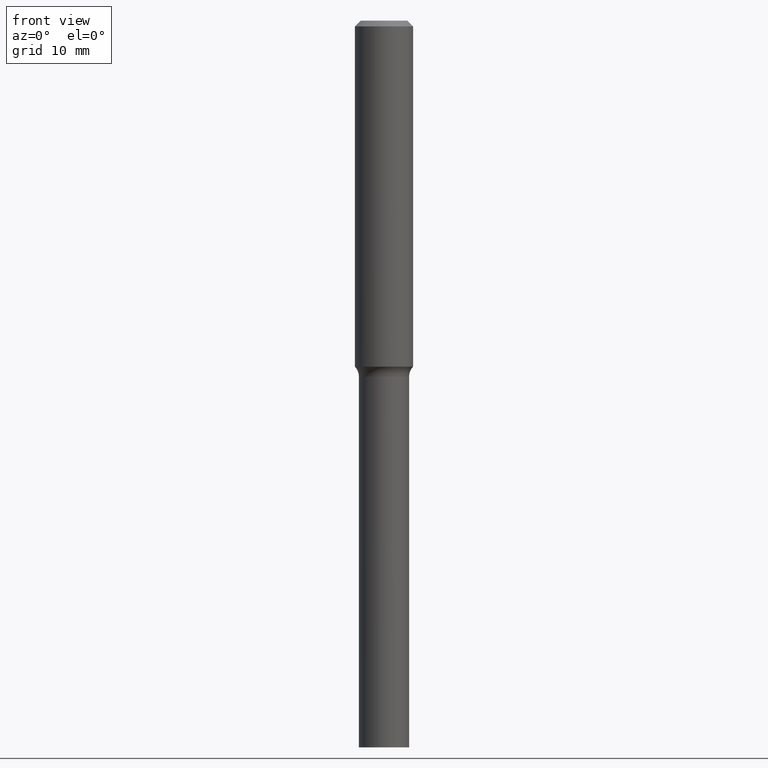
[diagram: clean part render]
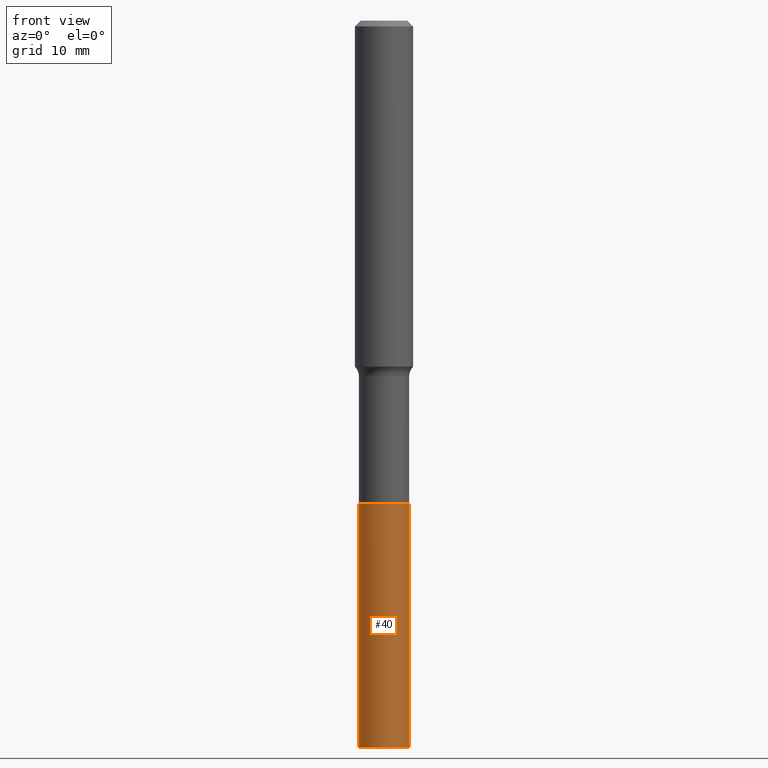
[diagram: same view with one face highlighted and labeled with its STEP entity id]
A machine part, front view. The second image highlights one B-rep face of the part: STEP entity #40.
In plain terms, the highlighted cylindrical surface (edge-blend (fillet) strip) has radius 3.4506 mm, axis along (-0, 0, 1).
Its self-contained STEP definition (entity closure, byte-faithful):
#8 = CYLINDRICAL_SURFACE ( 'NONE', #76, 0.1358500000000001096 ) ;
#9 = CARTESIAN_POINT ( 'NONE',  ( 0.1358499999999999985, -1.008933362485503452E-14, -2.618000000000000327 ) ) ;
#12 = CARTESIAN_POINT ( 'NONE',  ( 6.402237334592687709E-29, -9.140698145091355562E-15, -2.618000000000000327 ) ) ;
#32 = CARTESIAN_POINT ( 'NONE',  ( 6.402237334592687709E-29, -9.140698145091355562E-15, -2.618000000000000327 ) ) ;
#40 = ADVANCED_FACE ( 'NONE', ( #96 ), #8, .T. ) ;
#41 = CARTESIAN_POINT ( 'NONE',  ( -0.1358499999999999985, -1.047805778152831320E-14, -2.618000000000000327 ) ) ;
#63 = DIRECTION ( 'NONE',  ( -2.445468806185136597E-29, 3.491481338843145583E-15, 1.000000000000000000 ) ) ;
#66 = EDGE_CURVE ( 'NONE', #164, #117, #451, .T. ) ;
#71 = CARTESIAN_POINT ( 'NONE',  ( -0.1358500000000001096, -8.175425838561259273E-15, -2.618000000000000327 ) ) ;
#76 = AXIS2_PLACEMENT_3D ( 'NONE', #12, #240, #472 ) ;
#87 = VERTEX_POINT ( 'NONE', #9 ) ;
#88 = DIRECTION ( 'NONE',  ( -2.445468806185136597E-29, 3.491481338843145583E-15, 1.000000000000000000 ) ) ;
#96 = FACE_OUTER_BOUND ( 'NONE', #281, .T. ) ;
#104 = LINE ( 'NONE', #71, #121 ) ;
#117 = VERTEX_POINT ( 'NONE', #362 ) ;
#121 = VECTOR ( 'NONE', #337, 39.37007874015748143 ) ;
#159 = AXIS2_PLACEMENT_3D ( 'NONE', #246, #88, #205 ) ;
#164 = VERTEX_POINT ( 'NONE', #411 ) ;
#187 = CARTESIAN_POINT ( 'NONE',  ( 0.1358500000000001096, -1.008933362485503610E-14, -2.618000000000000327 ) ) ;
#205 = DIRECTION ( 'NONE',  ( 1.000000000000000000, -6.982962677686262766E-15, 0.000000000000000000 ) ) ;
#212 = EDGE_CURVE ( 'NONE', #117, #87, #379, .T. ) ;
#215 = DIRECTION ( 'NONE',  ( 1.000000000000000000, -6.982962677686261189E-15, 0.000000000000000000 ) ) ;
#217 = EDGE_CURVE ( 'NONE', #485, #87, #262, .T. ) ;
#240 = DIRECTION ( 'NONE',  ( -2.445468806185136597E-29, 3.491481338843145583E-15, 1.000000000000000000 ) ) ;
#246 = CARTESIAN_POINT ( 'NONE',  ( 9.627810689950883669E-29, -1.374596203102546341E-14, -3.937000000000000277 ) ) ;
#250 = ORIENTED_EDGE ( 'NONE', *, *, #66, .T. ) ;
#262 = CIRCLE ( 'NONE', #271, 0.1358499999999999985 ) ;
#271 = AXIS2_PLACEMENT_3D ( 'NONE', #32, #63, #215 ) ;
#281 = EDGE_LOOP ( 'NONE', ( #479, #250, #453, #515 ) ) ;
#337 = DIRECTION ( 'NONE',  ( -2.445468806185136877E-29, 3.491481338843145188E-15, 1.000000000000000000 ) ) ;
#362 = CARTESIAN_POINT ( 'NONE',  ( 0.1358500000000002483, -1.469459751078914395E-14, -3.937000000000000277 ) ) ;
#379 = LINE ( 'NONE', #187, #475 ) ;
#411 = CARTESIAN_POINT ( 'NONE',  ( -0.1358500000000002483, -1.047805778152831162E-14, -3.937000000000000277 ) ) ;
#412 = EDGE_CURVE ( 'NONE', #164, #485, #104, .T. ) ;
#451 = CIRCLE ( 'NONE', #159, 0.1358500000000002483 ) ;
#453 = ORIENTED_EDGE ( 'NONE', *, *, #212, .T. ) ;
#472 = DIRECTION ( 'NONE',  ( 1.000000000000000000, -6.982962677686269866E-15, 0.000000000000000000 ) ) ;
#475 = VECTOR ( 'NONE', #512, 39.37007874015748143 ) ;
#479 = ORIENTED_EDGE ( 'NONE', *, *, #412, .F. ) ;
#485 = VERTEX_POINT ( 'NONE', #41 ) ;
#512 = DIRECTION ( 'NONE',  ( -2.445468806185136877E-29, 3.491481338843145188E-15, 1.000000000000000000 ) ) ;
#515 = ORIENTED_EDGE ( 'NONE', *, *, #217, .F. ) ;